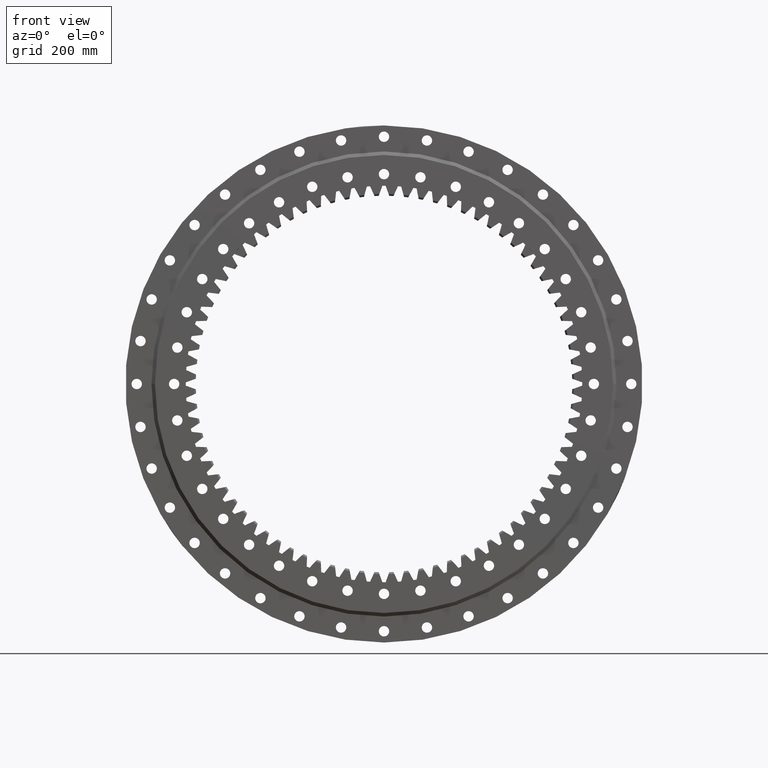
[diagram: clean part render]
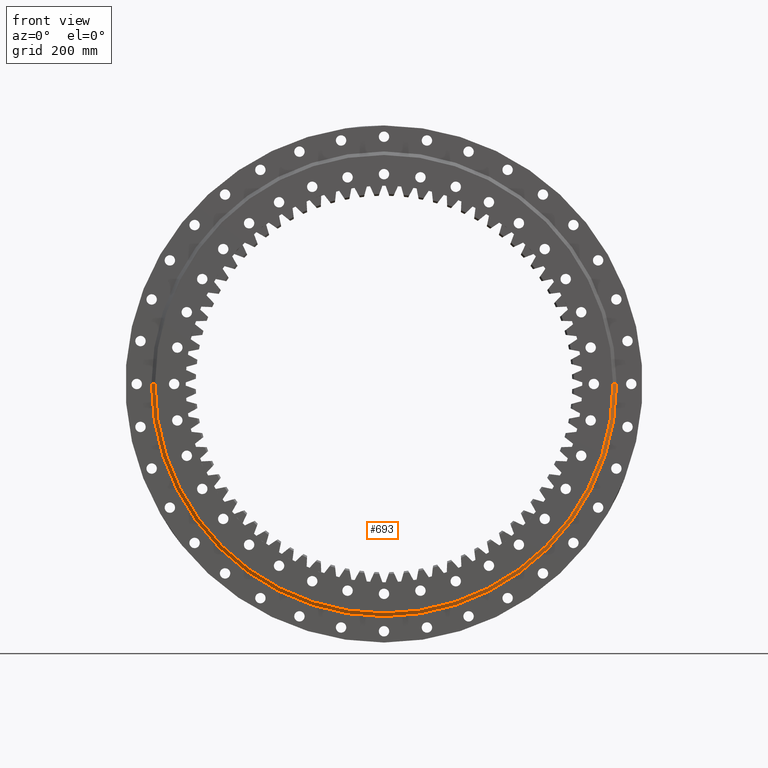
[diagram: same view with one face highlighted and labeled with its STEP entity id]
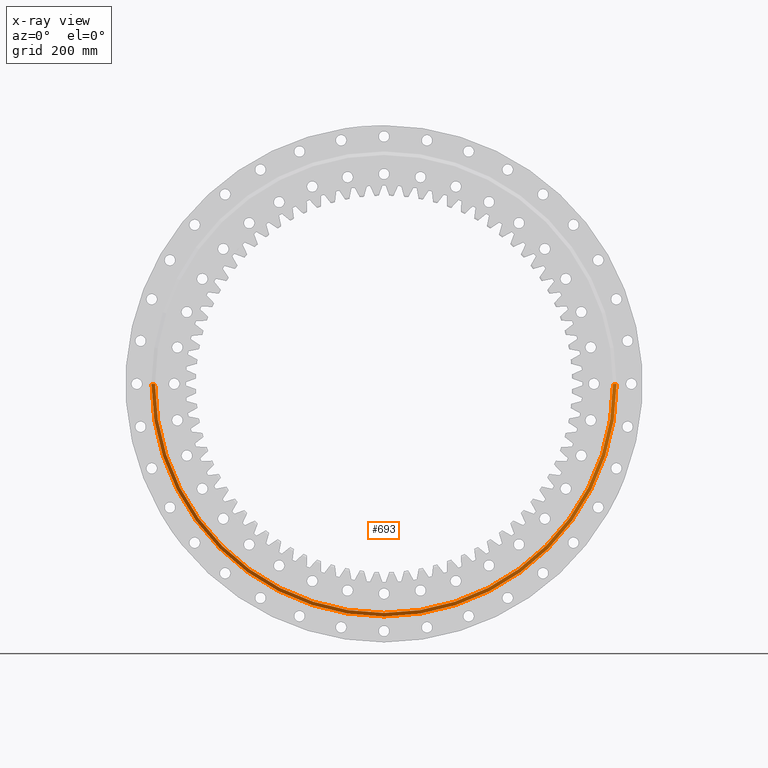
[diagram: x-ray of the same camera — body ghosted, the highlighted face saturated]
A machine part, front view. The second image highlights one B-rep face of the part: STEP entity #693.
The next image is the same camera in x-ray: the body ghosted, the highlighted face saturated — about 0% of this face is hidden behind the body in this view.
In plain terms, the highlighted conical surface has half-angle 49.914 deg.
Its self-contained STEP definition (entity closure, byte-faithful):
#693 = ADVANCED_FACE ( 'NONE', ( #1042 ), #702, .T. ) ;
#702 = CONICAL_SURFACE ( 'NONE', #7884, 385.7500000000001100, 0.8711601305813140300 ) ;
#947 = EDGE_CURVE ( 'NONE', #10861, #10544, #18405, .T. ) ;
#1042 = FACE_OUTER_BOUND ( 'NONE', #10489, .T. ) ;
#2070 = EDGE_CURVE ( 'NONE', #12387, #10861, #9703, .T. ) ;
#2671 = ORIENTED_EDGE ( 'NONE', *, *, #17048, .F. ) ;
#4356 = CIRCLE ( 'NONE', #18686, 391.7500000000000600 ) ;
#5574 = CARTESIAN_POINT ( 'NONE',  ( 385.7500000000001100, -30.05000000000007200, 4.724075027710915900E-014 ) ) ;
#5603 = DIRECTION ( 'NONE',  ( 0.7650765054985596600, 0.6439393921279489300, 9.369484935616533200E-017 ) ) ;
#5829 = AXIS2_PLACEMENT_3D ( 'NONE', #17746, #17674, #17724 ) ;
#7573 = VERTEX_POINT ( 'NONE', #13164 ) ;
#7884 = AXIS2_PLACEMENT_3D ( 'NONE', #24415, #24177, #20845 ) ;
#8073 = ORIENTED_EDGE ( 'NONE', *, *, #947, .T. ) ;
#8766 = ORIENTED_EDGE ( 'NONE', *, *, #15655, .F. ) ;
#9260 = ORIENTED_EDGE ( 'NONE', *, *, #2070, .T. ) ;
#9703 = CIRCLE ( 'NONE', #5829, 385.7500000000001100 ) ;
#9997 = CARTESIAN_POINT ( 'NONE',  ( -391.7500000000000600, -25.00000000000001400, 0.0000000000000000000 ) ) ;
#10489 = EDGE_LOOP ( 'NONE', ( #2671, #9260, #8073, #8766 ) ) ;
#10544 = VERTEX_POINT ( 'NONE', #9997 ) ;
#10861 = VERTEX_POINT ( 'NONE', #14144 ) ;
#12387 = VERTEX_POINT ( 'NONE', #19874 ) ;
#13023 = DIRECTION ( 'NONE',  ( -1.000000000000000000, 1.859818404365689400E-016, 0.0000000000000000000 ) ) ;
#13027 = DIRECTION ( 'NONE',  ( 1.836909530733565900E-016, 1.000000000000000000, -0.0000000000000000000 ) ) ;
#13164 = CARTESIAN_POINT ( 'NONE',  ( 391.7500000000000600, -25.00000000000016000, 4.797553835659756400E-014 ) ) ;
#13359 = CARTESIAN_POINT ( 'NONE',  ( -8.409847963666262200E-015, -25.00000000000008900, 0.0000000000000000000 ) ) ;
#14144 = CARTESIAN_POINT ( 'NONE',  ( -385.7500000000001100, -30.04999999999993300, 0.0000000000000000000 ) ) ;
#15655 = EDGE_CURVE ( 'NONE', #7573, #10544, #4356, .T. ) ;
#17048 = EDGE_CURVE ( 'NONE', #12387, #7573, #23460, .T. ) ;
#17674 = DIRECTION ( 'NONE',  ( 1.836909530733565900E-016, 1.000000000000000000, -0.0000000000000000000 ) ) ;
#17724 = DIRECTION ( 'NONE',  ( -1.000000000000000000, 1.798805937500253100E-016, 0.0000000000000000000 ) ) ;
#17746 = CARTESIAN_POINT ( 'NONE',  ( -9.337487276686696500E-015, -30.05000000000000400, 0.0000000000000000000 ) ) ;
#18143 = VECTOR ( 'NONE', #18268, 1000.000000000000000 ) ;
#18247 = CARTESIAN_POINT ( 'NONE',  ( -385.7500000000001100, -30.04999999999993300, 0.0000000000000000000 ) ) ;
#18268 = DIRECTION ( 'NONE',  ( -0.7650765054985595400, 0.6439393921279491500, 0.0000000000000000000 ) ) ;
#18405 = LINE ( 'NONE', #18247, #18143 ) ;
#18686 = AXIS2_PLACEMENT_3D ( 'NONE', #13359, #13027, #13023 ) ;
#19072 = VECTOR ( 'NONE', #5603, 1000.000000000000100 ) ;
#19874 = CARTESIAN_POINT ( 'NONE',  ( 385.7500000000001100, -30.05000000000007200, 4.760814431685336500E-014 ) ) ;
#20845 = DIRECTION ( 'NONE',  ( -1.000000000000000000, 1.798805937500253100E-016, 0.0000000000000000000 ) ) ;
#23460 = LINE ( 'NONE', #5574, #19072 ) ;
#24177 = DIRECTION ( 'NONE',  ( 1.836909530733565900E-016, 1.000000000000000000, -0.0000000000000000000 ) ) ;
#24415 = CARTESIAN_POINT ( 'NONE',  ( -9.337487276686696500E-015, -30.05000000000000400, 0.0000000000000000000 ) ) ;